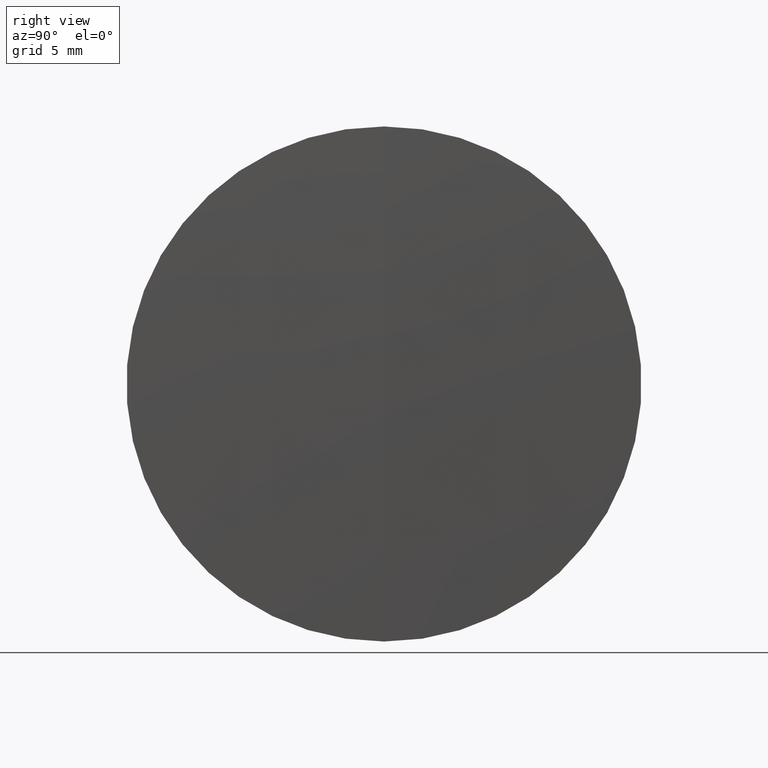
[diagram: clean part render]
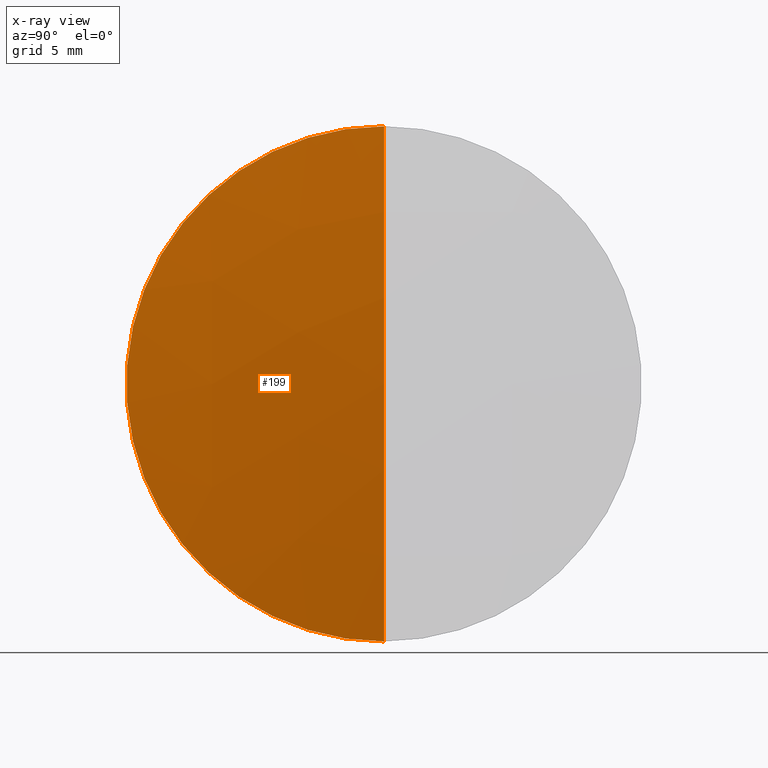
[diagram: x-ray — body ghosted, one internal face saturated and labeled with its STEP entity id]
A machine part, right view, then the same camera in x-ray: the body is ghosted and one INTERNAL B-rep face — a face not visible from any outside direction — is saturated and labeled: STEP entity #199.
In plain terms, the highlighted spherical surface has radius 162.392 mm.
Its self-contained STEP definition (entity closure, byte-faithful):
#15 = EDGE_CURVE ( 'NONE', #69, #247, #191, .T. ) ;
#40 = DIRECTION ( 'NONE',  ( 0.0000000000000000000, -1.000000000000000000, 0.0000000000000000000 ) ) ;
#44 = DIRECTION ( 'NONE',  ( -1.000000000000000000, -0.0000000000000000000, -0.0000000000000000000 ) ) ;
#53 = VERTEX_POINT ( 'NONE', #110 ) ;
#69 = VERTEX_POINT ( 'NONE', #83 ) ;
#78 = ORIENTED_EDGE ( 'NONE', *, *, #113, .F. ) ;
#83 = CARTESIAN_POINT ( 'NONE',  ( 312.3747908760627800, 2.449293598294676900E-015, -19.99999999999989700 ) ) ;
#93 = CARTESIAN_POINT ( 'NONE',  ( 312.3747908760627800, 0.0000000000000000000, 19.99999999999976200 ) ) ;
#97 = AXIS2_PLACEMENT_3D ( 'NONE', #148, #301, #274 ) ;
#110 = CARTESIAN_POINT ( 'NONE',  ( 313.6110846041469800, 0.0000000000000000000, -1.245160735530812400E-013 ) ) ;
#113 = EDGE_CURVE ( 'NONE', #53, #247, #290, .T. ) ;
#140 = CARTESIAN_POINT ( 'NONE',  ( 151.2190846041469300, 0.0000000000000000000, -1.344597157034381000E-013 ) ) ;
#148 = CARTESIAN_POINT ( 'NONE',  ( 151.2190846041469300, 0.0000000000000000000, -1.344597157034381000E-013 ) ) ;
#163 = CARTESIAN_POINT ( 'NONE',  ( 312.3747908760627800, 0.0000000000000000000, 0.0000000000000000000 ) ) ;
#168 = DIRECTION ( 'NONE',  ( 0.0000000000000000000, -1.224646799147353200E-016, 1.000000000000000000 ) ) ;
#191 = CIRCLE ( 'NONE', #298, 19.99999999999989300 ) ;
#193 = ORIENTED_EDGE ( 'NONE', *, *, #337, .T. ) ;
#199 = ADVANCED_FACE ( 'NONE', ( #207 ), #275, .F. ) ;
#203 = DIRECTION ( 'NONE',  ( 0.0000000000000000000, 0.0000000000000000000, -1.000000000000000000 ) ) ;
#207 = FACE_OUTER_BOUND ( 'NONE', #287, .T. ) ;
#210 = DIRECTION ( 'NONE',  ( 0.0000000000000000000, 0.0000000000000000000, 1.000000000000000000 ) ) ;
#224 = CIRCLE ( 'NONE', #230, 162.3920000000000200 ) ;
#230 = AXIS2_PLACEMENT_3D ( 'NONE', #140, #318, #168 ) ;
#236 = CARTESIAN_POINT ( 'NONE',  ( 151.2190846041469300, 0.0000000000000000000, -1.344597157034381000E-013 ) ) ;
#247 = VERTEX_POINT ( 'NONE', #93 ) ;
#274 = DIRECTION ( 'NONE',  ( 0.0000000000000000000, 0.0000000000000000000, 1.000000000000000000 ) ) ;
#275 = SPHERICAL_SURFACE ( 'NONE', #97, 162.3920000000000200 ) ;
#277 = AXIS2_PLACEMENT_3D ( 'NONE', #236, #40, #203 ) ;
#287 = EDGE_LOOP ( 'NONE', ( #78, #193, #305 ) ) ;
#290 = CIRCLE ( 'NONE', #277, 162.3920000000000200 ) ;
#298 = AXIS2_PLACEMENT_3D ( 'NONE', #163, #44, #210 ) ;
#301 = DIRECTION ( 'NONE',  ( 0.0000000000000000000, 1.000000000000000000, 0.0000000000000000000 ) ) ;
#305 = ORIENTED_EDGE ( 'NONE', *, *, #15, .T. ) ;
#318 = DIRECTION ( 'NONE',  ( -0.0000000000000000000, 1.000000000000000000, 1.224646799147353200E-016 ) ) ;
#337 = EDGE_CURVE ( 'NONE', #53, #69, #224, .T. ) ;